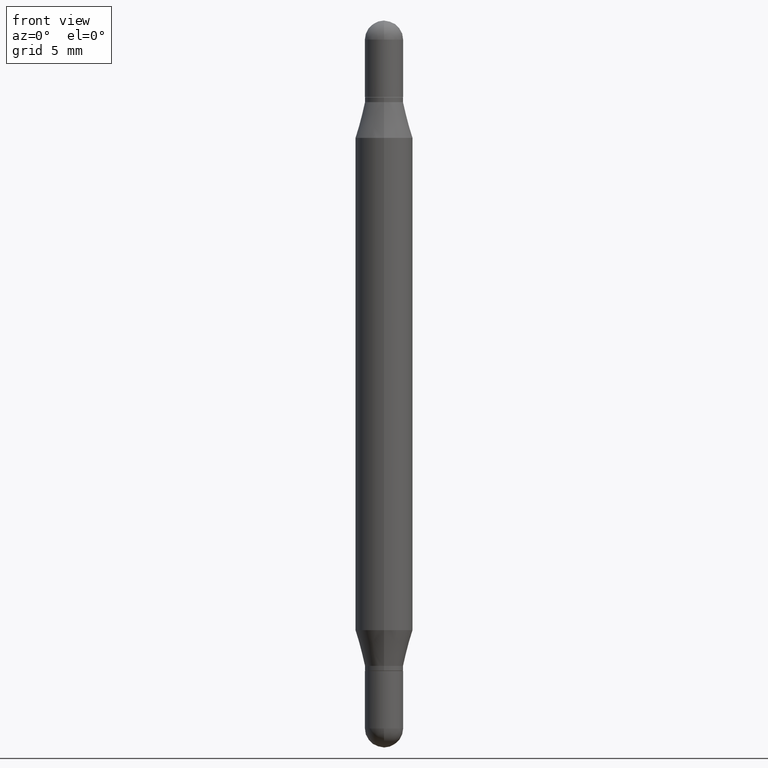
[diagram: clean part render]
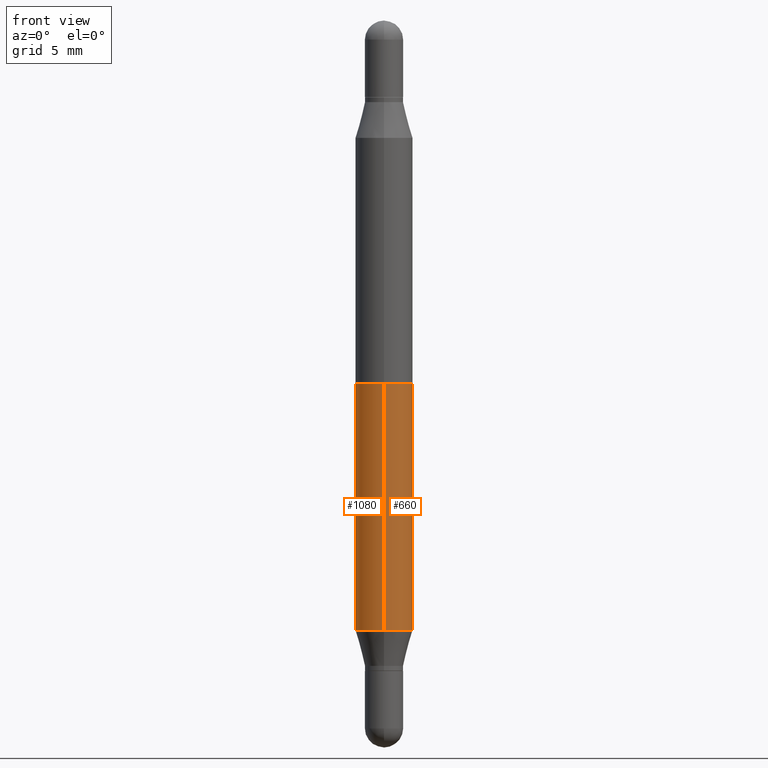
[diagram: same view with one multi-face feature highlighted, each face labeled with its STEP entity id]
A machine part, front view. The highlighted faces form ONE feature: a constant-radius fillet chain: 2 tangent blend faces with common blend radius 1.4999 mm. The faces share edges in the B-rep.
Their STEP definitions:
[1] entity #660 (Cylinder):
#7 = DIRECTION ( 'NONE',  ( 2.445676712903946009E-29, 3.479912201232478588E-15, 1.000000000000000000 ) ) ;
#12 = DIRECTION ( 'NONE',  ( -2.445676712903946009E-29, 3.491183604588495249E-15, 1.000000000000000000 ) ) ;
#31 = CIRCLE ( 'NONE', #637, 0.05904999999999999832 ) ;
#37 = ORIENTED_EDGE ( 'NONE', *, *, #596, .F. ) ;
#109 = LINE ( 'NONE', #625, #747 ) ;
#124 = VERTEX_POINT ( 'NONE', #749 ) ;
#131 = EDGE_CURVE ( 'NONE', #124, #529, #851, .T. ) ;
#167 = AXIS2_PLACEMENT_3D ( 'NONE', #693, #439, #328 ) ;
#183 = CARTESIAN_POINT ( 'NONE',  ( -4.123439461173433657E-16, -0.05905000000000084487, -0.2415214009091066205 ) ) ;
#315 = CARTESIAN_POINT ( 'NONE',  ( 4.051124067684272093E-16, 0.05904999999999561988, -1.254578599090893309 ) ) ;
#318 = LINE ( 'NONE', #323, #513 ) ;
#323 = CARTESIAN_POINT ( 'NONE',  ( 4.051124067684089175E-16, 0.05904999999999479415, -1.496100000000000207 ) ) ;
#325 = ORIENTED_EDGE ( 'NONE', *, *, #554, .F. ) ;
#328 = DIRECTION ( 'NONE',  ( -6.982962677686265922E-15, -1.000000000000000000, 4.626330217890369336E-15 ) ) ;
#337 = CARTESIAN_POINT ( 'NONE',  ( 3.068293664304252923E-29, -4.379964235813728471E-15, -1.254578599090893087 ) ) ;
#433 = DIRECTION ( 'NONE',  ( -6.982962677686265922E-15, -1.000000000000000000, 4.626330217890369336E-15 ) ) ;
#439 = DIRECTION ( 'NONE',  ( -2.445676712903946009E-29, -3.479912201232478588E-15, -1.000000000000000000 ) ) ;
#513 = VECTOR ( 'NONE', #1008, 39.37007874015748143 ) ;
#522 = CYLINDRICAL_SURFACE ( 'NONE', #167, 0.05905000000000000526 ) ;
#529 = VERTEX_POINT ( 'NONE', #315 ) ;
#554 = EDGE_CURVE ( 'NONE', #940, #961, #31, .T. ) ;
#596 = EDGE_CURVE ( 'NONE', #961, #529, #318, .T. ) ;
#611 = DIRECTION ( 'NONE',  ( -6.982962677686265922E-15, -1.000000000000000000, 3.469747663417777397E-15 ) ) ;
#625 = CARTESIAN_POINT ( 'NONE',  ( -4.123439461173740327E-16, -0.05905000000000522331, -1.496099999999999541 ) ) ;
#637 = AXIS2_PLACEMENT_3D ( 'NONE', #685, #7, #611 ) ;
#660 = ADVANCED_FACE ( 'NONE', ( #771 ), #522, .T. ) ;
#685 = CARTESIAN_POINT ( 'NONE',  ( 3.068293664304252923E-29, -8.489048431628303814E-16, -0.2415214009091068426 ) ) ;
#693 = CARTESIAN_POINT ( 'NONE',  ( 0.000000000000000000, -5.214728217544379106E-15, -1.496099999999999985 ) ) ;
#705 = DIRECTION ( 'NONE',  ( -2.445676712903946009E-29, -3.479912201232478588E-15, -1.000000000000000000 ) ) ;
#747 = VECTOR ( 'NONE', #705, 39.37007874015748143 ) ;
#749 = CARTESIAN_POINT ( 'NONE',  ( -4.123439461173433164E-16, -0.05905000000000437677, -1.254578599090892865 ) ) ;
#762 = EDGE_LOOP ( 'NONE', ( #37, #325, #979, #900 ) ) ;
#771 = FACE_OUTER_BOUND ( 'NONE', #762, .T. ) ;
#789 = CARTESIAN_POINT ( 'NONE',  ( 4.051124067684395845E-16, 0.05904999999999915178, -0.2415214009091070368 ) ) ;
#851 = CIRCLE ( 'NONE', #1020, 0.05904999999999999832 ) ;
#900 = ORIENTED_EDGE ( 'NONE', *, *, #131, .T. ) ;
#940 = VERTEX_POINT ( 'NONE', #183 ) ;
#961 = VERTEX_POINT ( 'NONE', #789 ) ;
#979 = ORIENTED_EDGE ( 'NONE', *, *, #1045, .T. ) ;
#1008 = DIRECTION ( 'NONE',  ( -2.445676712903946009E-29, -3.479912201232478588E-15, -1.000000000000000000 ) ) ;
#1020 = AXIS2_PLACEMENT_3D ( 'NONE', #337, #12, #433 ) ;
#1045 = EDGE_CURVE ( 'NONE', #940, #124, #109, .T. ) ;
[2] entity #1080 (Cylinder):
#87 = ORIENTED_EDGE ( 'NONE', *, *, #715, .T. ) ;
#109 = LINE ( 'NONE', #625, #747 ) ;
#124 = VERTEX_POINT ( 'NONE', #749 ) ;
#138 = AXIS2_PLACEMENT_3D ( 'NONE', #675, #168, #515 ) ;
#168 = DIRECTION ( 'NONE',  ( -2.445676712903946009E-29, -3.479912201232478588E-15, -1.000000000000000000 ) ) ;
#183 = CARTESIAN_POINT ( 'NONE',  ( -4.123439461173433657E-16, -0.05905000000000084487, -0.2415214009091066205 ) ) ;
#238 = FACE_OUTER_BOUND ( 'NONE', #767, .T. ) ;
#315 = CARTESIAN_POINT ( 'NONE',  ( 4.051124067684272093E-16, 0.05904999999999561988, -1.254578599090893309 ) ) ;
#318 = LINE ( 'NONE', #323, #513 ) ;
#323 = CARTESIAN_POINT ( 'NONE',  ( 4.051124067684089175E-16, 0.05904999999999479415, -1.496100000000000207 ) ) ;
#498 = DIRECTION ( 'NONE',  ( -6.982962677686265922E-15, -1.000000000000000000, 3.469747663417777397E-15 ) ) ;
#513 = VECTOR ( 'NONE', #1008, 39.37007874015748143 ) ;
#515 = DIRECTION ( 'NONE',  ( -6.982962677686265922E-15, -1.000000000000000000, 4.626330217890369336E-15 ) ) ;
#525 = CARTESIAN_POINT ( 'NONE',  ( 3.068293664304252923E-29, -4.379964235813728471E-15, -1.254578599090893087 ) ) ;
#529 = VERTEX_POINT ( 'NONE', #315 ) ;
#596 = EDGE_CURVE ( 'NONE', #961, #529, #318, .T. ) ;
#604 = AXIS2_PLACEMENT_3D ( 'NONE', #525, #760, #682 ) ;
#625 = CARTESIAN_POINT ( 'NONE',  ( -4.123439461173740327E-16, -0.05905000000000522331, -1.496099999999999541 ) ) ;
#630 = DIRECTION ( 'NONE',  ( 2.445676712903946009E-29, 3.479912201232478588E-15, 1.000000000000000000 ) ) ;
#675 = CARTESIAN_POINT ( 'NONE',  ( 0.000000000000000000, -5.214728217544379106E-15, -1.496099999999999985 ) ) ;
#682 = DIRECTION ( 'NONE',  ( -6.982962677686265922E-15, -1.000000000000000000, 4.626330217890369336E-15 ) ) ;
#705 = DIRECTION ( 'NONE',  ( -2.445676712903946009E-29, -3.479912201232478588E-15, -1.000000000000000000 ) ) ;
#715 = EDGE_CURVE ( 'NONE', #529, #124, #764, .T. ) ;
#747 = VECTOR ( 'NONE', #705, 39.37007874015748143 ) ;
#749 = CARTESIAN_POINT ( 'NONE',  ( -4.123439461173433164E-16, -0.05905000000000437677, -1.254578599090892865 ) ) ;
#760 = DIRECTION ( 'NONE',  ( -2.445676712903946009E-29, 3.491183604588495249E-15, 1.000000000000000000 ) ) ;
#764 = CIRCLE ( 'NONE', #604, 0.05904999999999999832 ) ;
#767 = EDGE_LOOP ( 'NONE', ( #963, #988, #87, #792 ) ) ;
#789 = CARTESIAN_POINT ( 'NONE',  ( 4.051124067684395845E-16, 0.05904999999999915178, -0.2415214009091070368 ) ) ;
#792 = ORIENTED_EDGE ( 'NONE', *, *, #1045, .F. ) ;
#926 = CIRCLE ( 'NONE', #952, 0.05904999999999999832 ) ;
#940 = VERTEX_POINT ( 'NONE', #183 ) ;
#952 = AXIS2_PLACEMENT_3D ( 'NONE', #1066, #630, #498 ) ;
#961 = VERTEX_POINT ( 'NONE', #789 ) ;
#963 = ORIENTED_EDGE ( 'NONE', *, *, #1068, .F. ) ;
#988 = ORIENTED_EDGE ( 'NONE', *, *, #596, .T. ) ;
#1008 = DIRECTION ( 'NONE',  ( -2.445676712903946009E-29, -3.479912201232478588E-15, -1.000000000000000000 ) ) ;
#1045 = EDGE_CURVE ( 'NONE', #940, #124, #109, .T. ) ;
#1066 = CARTESIAN_POINT ( 'NONE',  ( 3.068293664304252923E-29, -8.489048431628303814E-16, -0.2415214009091068426 ) ) ;
#1068 = EDGE_CURVE ( 'NONE', #961, #940, #926, .T. ) ;
#1080 = ADVANCED_FACE ( 'NONE', ( #238 ), #1097, .T. ) ;
#1097 = CYLINDRICAL_SURFACE ( 'NONE', #138, 0.05905000000000000526 ) ;